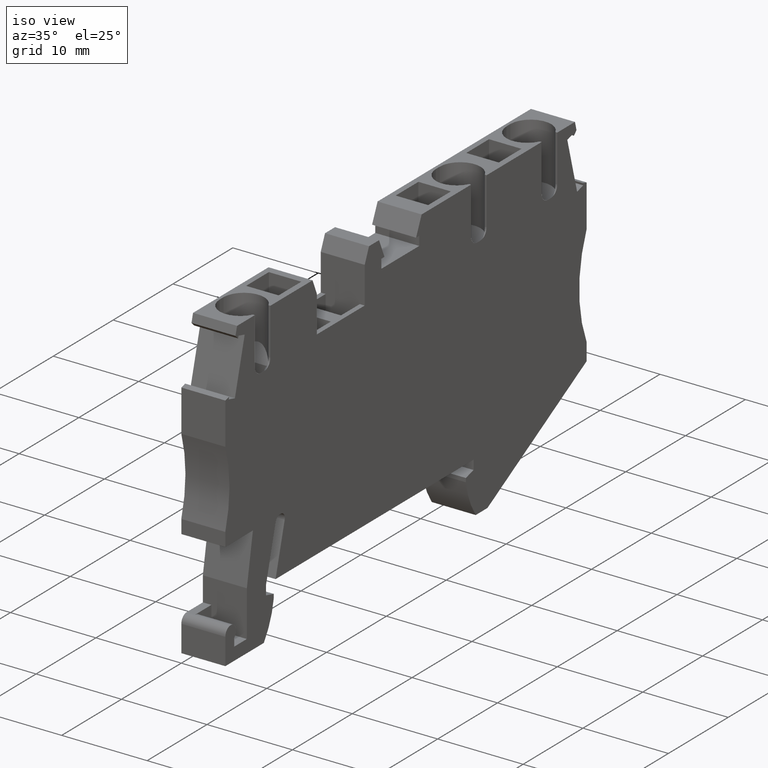
[diagram: clean part render]
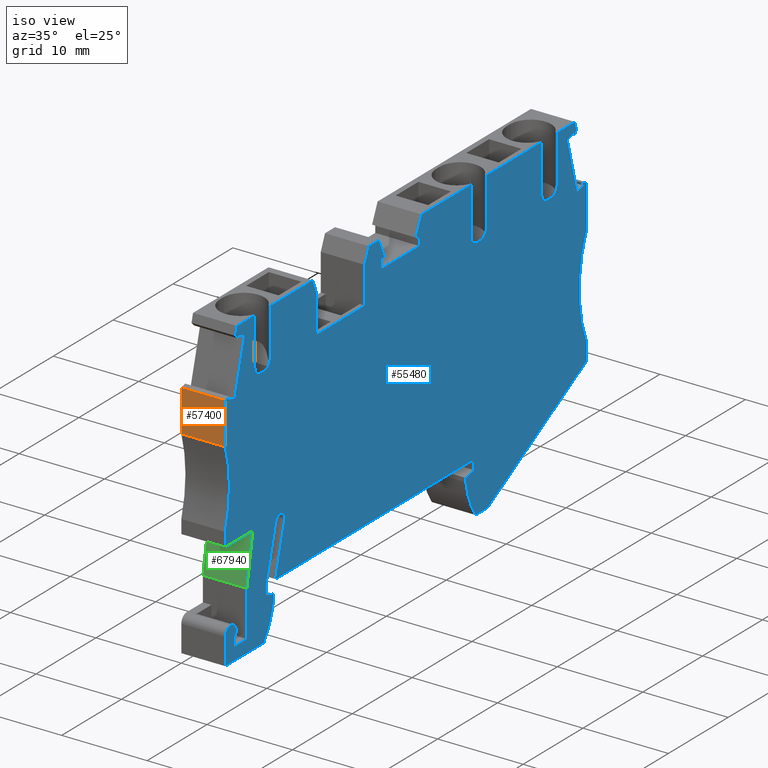
[diagram: same view with three faces highlighted in distinct colors, each labeled with its STEP entity id]
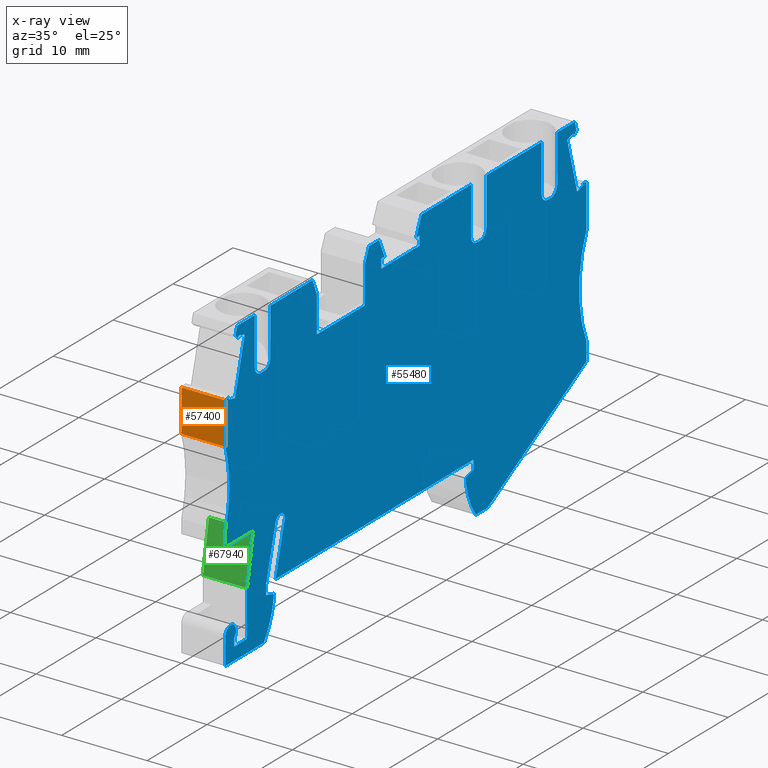
[diagram: x-ray of the same camera — body ghosted, the three highlighted faces saturated]
A machine part, iso view with three faces highlighted in distinct colors.
The next image is the same camera in x-ray (body ghosted, the three faces saturated) — at least one of them is partly hidden behind the body in this view.
Their STEP definitions:

[orange] entity #57400 — the highlighted planar face has unit normal (-0, -1, 0).
#3920=CARTESIAN_POINT('',(-22.3678327783245,-16.3000793279225,48.52));
#3930=VERTEX_POINT('',#3920);
#4080=CARTESIAN_POINT('',(-22.3678327783245,-16.3000793279225,53.67));
#4090=VERTEX_POINT('',#4080);
#4120=CARTESIAN_POINT('',(-22.3678327783246,-16.3000793279226,53.67));
#4130=DIRECTION('',(0.,0.,-1.));
#4140=VECTOR('',#4130,1.);
#4150=LINE('',#4120,#4140);
#4160=EDGE_CURVE('',#4090,#3930,#4150,.T.);
#36080=CARTESIAN_POINT('',(-22.3678327783245,-39.6931569607141,48.52));
#36090=DIRECTION('',(-2.05391259555654E-15,1.,0.));
#36100=VECTOR('',#36090,1.);
#36110=LINE('',#36080,#36100);
#36120=CARTESIAN_POINT('',(-22.3678327783245,-21.2000000000028,48.52));
#36130=VERTEX_POINT('',#36120);
#36140=EDGE_CURVE('',#36130,#3930,#36110,.T.);
#52180=CARTESIAN_POINT('',(-22.3678327783245,-21.2000000000028,53.67));
#52190=VERTEX_POINT('',#52180);
#52220=CARTESIAN_POINT('',(-22.3678327783245,-39.6931569607141,53.67));
#52230=DIRECTION('',(-2.05391259555654E-15,1.,0.));
#52240=VECTOR('',#52230,1.);
#52250=LINE('',#52220,#52240);
#52260=EDGE_CURVE('',#52190,#4090,#52250,.T.);
#57240=CARTESIAN_POINT('',(-22.3678327783245,-19.2393498779175,53.67));
#57250=DIRECTION('',(-1.,-2.05391259555654E-15,-0.));
#57260=DIRECTION('',(-2.05391259555654E-15,1.,0.));
#57270=AXIS2_PLACEMENT_3D('',#57240,#57250,#57260);
#57280=PLANE('',#57270);
#57290=ORIENTED_EDGE('',*,*,#4160,.T.);
#57300=ORIENTED_EDGE('',*,*,#52260,.T.);
#57310=CARTESIAN_POINT('',(-22.3678327783245,-21.2000000000028,53.67));
#57320=DIRECTION('',(0.,0.,1.));
#57330=VECTOR('',#57320,1.);
#57340=LINE('',#57310,#57330);
#57350=EDGE_CURVE('',#36130,#52190,#57340,.T.);
#57360=ORIENTED_EDGE('',*,*,#57350,.T.);
#57370=ORIENTED_EDGE('',*,*,#36140,.F.);
#57380=EDGE_LOOP('',(#57370,#57360,#57300,#57290));
#57390=FACE_OUTER_BOUND('',#57380,.T.);
#57400=ADVANCED_FACE('',(#57390),#57280,.T.);

[blue] entity #55480 — the highlighted planar face has unit normal (1, -0, -0).
#580=CARTESIAN_POINT('',(-16.4428327783246,-15.6499999999974,
53.6700000000011));
#590=VERTEX_POINT('',#580);
#4000=CARTESIAN_POINT('',(-21.7289289220527,-16.1288855555983,53.67));
#4010=VERTEX_POINT('',#4000);
#4040=CARTESIAN_POINT('',(-31.8869546500592,-18.8507203460335,53.67));
#4050=DIRECTION('',(-0.965925826290942,-0.25881904509553,0.));
#4060=VECTOR('',#4050,1.);
#4070=LINE('',#4040,#4060);
#4080=CARTESIAN_POINT('',(-22.3678327783245,-16.3000793279225,53.67));
#4090=VERTEX_POINT('',#4080);
#4100=EDGE_CURVE('',#4010,#4090,#4070,.T.);
#4390=CARTESIAN_POINT('',(32.1071675303897,-15.6499999999945,53.67));
#4400=VERTEX_POINT('',#4390);
#4430=CARTESIAN_POINT('',(-31.4939556077462,-15.6499999995742,53.67));
#4440=DIRECTION('',(1.,-6.60929644347164E-12,0.));
#4450=VECTOR('',#4440,1.);
#4460=LINE('',#4430,#4450);
#4470=CARTESIAN_POINT('',(31.5071672216764,-15.6499999999905,53.67));
#4480=VERTEX_POINT('',#4470);
#4490=EDGE_CURVE('',#4480,#4400,#4460,.T.);
#5860=CARTESIAN_POINT('',(-14.2678327783245,-40.3000000000023,53.67));
#5870=VERTEX_POINT('',#5860);
#6030=CARTESIAN_POINT('',(-15.9267764314572,-44.4000000000014,53.67));
#6040=VERTEX_POINT('',#6030);
#6070=CARTESIAN_POINT('',(-23.6618054577009,-38.8846282117039,53.67));
#6080=DIRECTION('',(0.,0.,1.));
#6090=DIRECTION('',(1.,0.,0.));
#6100=AXIS2_PLACEMENT_3D('',#6070,#6080,#6090);
#6110=CIRCLE('',#6100,9.499999999999);
#6120=EDGE_CURVE('',#6040,#5870,#6110,.T.);
#6760=CARTESIAN_POINT('',(0.932167221675449,-42.5540372297518,53.67));
#6770=DIRECTION('',(-5.53723733531797E-15,1.,0.));
#6780=VECTOR('',#6770,1.);
#6790=LINE('',#6760,#6780);
#6800=CARTESIAN_POINT('',(0.9321672216753,-15.1500000000016,53.67));
#6810=VERTEX_POINT('',#6800);
#6820=CARTESIAN_POINT('',(0.932167221675272,-10.8500000000035,53.67));
#6830=VERTEX_POINT('',#6820);
#6840=EDGE_CURVE('',#6810,#6830,#6790,.T.);
#7570=CARTESIAN_POINT('',(-13.9678327783249,-38.4000000000014,53.67));
#7580=VERTEX_POINT('',#7570);
#7730=CARTESIAN_POINT('',(-12.4395449513869,-32.6963521812909,53.67));
#7740=VERTEX_POINT('',#7730);
#7770=CARTESIAN_POINT('',(-14.5708539323056,-40.6505055846918,53.67));
#7780=DIRECTION('',(0.258819045102995,0.965925826288942,0.));
#7790=VECTOR('',#7780,1.);
#7800=LINE('',#7770,#7790);
#7810=EDGE_CURVE('',#7580,#7740,#7800,.T.);
#8020=CARTESIAN_POINT('',(10.0446672216771,-12.3250000000016,53.67));
#8030=VERTEX_POINT('',#8020);
#8080=CARTESIAN_POINT('',(-31.0856969427963,-12.3249999999992,53.67));
#8090=DIRECTION('',(-1.,5.79813974610488E-14,0.));
#8100=VECTOR('',#8090,1.);
#8110=LINE('',#8080,#8100);
#8120=CARTESIAN_POINT('',(3.71966722167659,-12.3250000000012,53.67));
#8130=VERTEX_POINT('',#8120);
#8140=EDGE_CURVE('',#8030,#8130,#8110,.T.);
#10130=CARTESIAN_POINT('',(31.507167530391,-14.6499999999794,53.67));
#10140=DIRECTION('',(3.13115360099042E-12,-1.00896627027643E-12,-1.));
#10150=DIRECTION('',(-1.,-3.96765953425415E-14,-3.13115360099038E-12));
#10160=AXIS2_PLACEMENT_3D('',#10130,#10140,#10150);
#10170=CIRCLE('',#10160,1.);
#10180=CARTESIAN_POINT('',(31.507159775291,-15.6499999999493,
53.670000000001));
#10190=VERTEX_POINT('',#10180);
#10200=CARTESIAN_POINT('',(30.5071672216764,-14.6499999999796,53.67));
#10210=VERTEX_POINT('',#10200);
#10220=EDGE_CURVE('',#10190,#10210,#10170,.T.);
#11380=CARTESIAN_POINT('',(18.7071672216764,-14.6499999999833,53.67));
#11390=VERTEX_POINT('',#11380);
#11420=CARTESIAN_POINT('',(18.7071672216652,-44.7365327997996,53.67));
#11430=DIRECTION('',(1.56846757803919E-13,-1.,0.));
#11440=VECTOR('',#11430,1.);
#11450=LINE('',#11420,#11440);
#11460=CARTESIAN_POINT('',(18.7071672216757,-9.1500000000032,53.67));
#11470=VERTEX_POINT('',#11460);
#11480=EDGE_CURVE('',#11470,#11390,#11450,.T.);
#11830=CARTESIAN_POINT('',(17.8321672216754,-39.8483339501617,53.67));
#11840=VERTEX_POINT('',#11830);
#12010=CARTESIAN_POINT('',(19.1321672216756,-39.5000000000013,53.67));
#12020=VERTEX_POINT('',#12010);
#12050=CARTESIAN_POINT('',(-36.2442529339963,-54.3380670604362,53.67));
#12060=DIRECTION('',(0.965925826289086,0.258819045102457,0.));
#12070=VECTOR('',#12060,1.);
#12080=LINE('',#12050,#12070);
#12090=EDGE_CURVE('',#11840,#12020,#12080,.T.);
#12300=CARTESIAN_POINT('',(-20.2328552587309,-10.545462632217,53.67));
#12310=VERTEX_POINT('',#12300);
#12360=CARTESIAN_POINT('',(-27.8621918696398,-39.0185344922441,53.67));
#12370=DIRECTION('',(0.258819045101928,0.965925826289227,0.));
#12380=VECTOR('',#12370,1.);
#12390=LINE('',#12360,#12380);
#12400=CARTESIAN_POINT('',(-20.1623768602548,-10.2824336682674,53.67));
#12410=VERTEX_POINT('',#12400);
#12420=EDGE_CURVE('',#12310,#12410,#12390,.T.);
#12680=CARTESIAN_POINT('',(31.5071675303976,-15.6499999999819,
51.2699999999961));
#12690=DIRECTION('',(-3.76046036448341E-14,1.,-1.0101963979135E-12));
#12700=DIRECTION('',(1.,3.96627175547337E-14,3.13117544713387E-12));
#12710=AXIS2_PLACEMENT_3D('',#12680,#12690,#12700);
#12720=CONICAL_SURFACE('',#12710,2.4,0.523598775598298);
#12730=CARTESIAN_POINT('',(3.5299232216756,-14.8667820000014,53.67));
#12740=DIRECTION('',(0.,-0.,1.));
#12750=DIRECTION('',(0.,1.,0.));
#12760=AXIS2_PLACEMENT_3D('',#12730,#12740,#12750);
#12770=PLANE('',#12760);
#12780=CARTESIAN_POINT('',(31.507159775291,-15.6499999999511,53.67));
#12790=CARTESIAN_POINT('',(31.5071603958231,-15.6499999999545,53.67));
#12800=CARTESIAN_POINT('',(31.5071610163551,-15.6499999999576,53.67));
#12810=CARTESIAN_POINT('',(31.5071616368872,-15.6499999999602,53.67));
#12820=CARTESIAN_POINT('',(31.5071622574193,-15.6499999999629,53.67));
#12830=CARTESIAN_POINT('',(31.5071628779513,-15.6499999999651,53.67));
#12840=CARTESIAN_POINT('',(31.5071634984835,-15.6499999999669,53.67));
#12850=CARTESIAN_POINT('',(31.5071641190156,-15.6499999999687,53.67));
#12860=CARTESIAN_POINT('',(31.5071647395477,-15.6499999999701,53.67));
#12870=CARTESIAN_POINT('',(31.5071653600799,-15.6499999999711,53.67));
#12880=CARTESIAN_POINT('',(31.507165980612,-15.649999999972,53.67));
#12890=CARTESIAN_POINT('',(31.5071666011442,-15.6499999999726,53.67));
#12900=CARTESIAN_POINT('',(31.5071672216764,-15.6499999999727,53.67));
#12910=B_SPLINE_CURVE_WITH_KNOTS('',3,(#12780,#12790,#12800,#12810,
#12820,#12830,#12840,#12850,#12860,#12870,#12880,#12890,#12900),
.UNSPECIFIED.,.F.,.F.,(4,3,3,3,4),(0.,1.86149800215878E-6,
3.72322501201359E-6,5.58483752523031E-6,7.44645003417067E-6),
.UNSPECIFIED.);
#12920=SURFACE_CURVE('',#12910,(#12770,#12720),.CURVE_3D.);
#12930=EDGE_CURVE('',#10190,#4480,#12920,.T.);
#15360=CARTESIAN_POINT('',(36.0719729923297,-9.15000000000321,53.67));
#15370=VERTEX_POINT('',#15360);
#15400=CARTESIAN_POINT('',(-30.6958559619301,-9.15000000000321,53.67));
#15410=DIRECTION('',(-1.,0.,0.));
#15420=VECTOR('',#15410,1.);
#15430=LINE('',#15400,#15420);
#15440=CARTESIAN_POINT('',(33.1071672216757,-9.15000000000321,53.67));
#15450=VERTEX_POINT('',#15440);
#15460=EDGE_CURVE('',#15370,#15450,#15430,.T.);
#15860=CARTESIAN_POINT('',(30.5071672216757,-9.15000000000328,53.67));
#15870=VERTEX_POINT('',#15860);
#15900=CARTESIAN_POINT('',(-30.7553307158937,-9.15000000000321,53.67));
#15910=DIRECTION('',(-1.,0.,0.));
#15920=VECTOR('',#15910,1.);
#15930=LINE('',#15900,#15920);
#15940=CARTESIAN_POINT('',(21.3071672216757,-9.15000000000321,53.67));
#15950=VERTEX_POINT('',#15940);
#15960=EDGE_CURVE('',#15870,#15950,#15930,.T.);
#16310=CARTESIAN_POINT('',(-30.6958559619301,-9.15000000000321,53.67));
#16320=DIRECTION('',(1.,0.,0.));
#16330=VECTOR('',#16320,1.);
#16340=LINE('',#16310,#16330);
#16350=CARTESIAN_POINT('',(10.4418215966526,-9.15000000000316,53.67));
#16360=VERTEX_POINT('',#16350);
#16370=EDGE_CURVE('',#16360,#11470,#16340,.T.);
#16740=CARTESIAN_POINT('',(-22.3678327783245,-30.2000000000027,53.67));
#16750=VERTEX_POINT('',#16740);
#16780=CARTESIAN_POINT('',(-22.3678327783245,-39.6931569607141,53.67));
#16790=DIRECTION('',(-2.05391259555654E-15,1.,0.));
#16800=VECTOR('',#16790,1.);
#16810=LINE('',#16780,#16800);
#16820=CARTESIAN_POINT('',(-22.3678327783245,-31.8000000000004,53.67));
#16830=VERTEX_POINT('',#16820);
#16840=EDGE_CURVE('',#16830,#16750,#16810,.T.);
#18300=CARTESIAN_POINT('',(-15.8428324695884,-15.6499999999869,53.67));
#18310=VERTEX_POINT('',#18300);
#18380=CARTESIAN_POINT('',(-14.8428327783256,-14.6499999999965,53.67));
#18390=VERTEX_POINT('',#18380);
#18420=CARTESIAN_POINT('',(-15.8428324695895,-14.6499999999971,53.67));
#18430=DIRECTION('',(3.13117048096117E-12,1.00896627027886E-12,1.));
#18440=DIRECTION('',(1.,7.37479521895068E-13,-3.13117048096192E-12));
#18450=AXIS2_PLACEMENT_3D('',#18420,#18430,#18440);
#18460=CIRCLE('',#18450,1.);
#18470=EDGE_CURVE('',#18310,#18390,#18460,.T.);
#23270=CARTESIAN_POINT('',(21.4498082777127,-44.4000000000015,53.67));
#23280=VERTEX_POINT('',#23270);
#23430=CARTESIAN_POINT('',(19.4911108748078,-44.4000000000014,53.67));
#23440=VERTEX_POINT('',#23430);
#23470=CARTESIAN_POINT('',(-35.0240117337568,-44.3999999999983,53.67));
#23480=DIRECTION('',(-1.,5.79120085220097E-14,0.));
#23490=VECTOR('',#23480,1.);
#23500=LINE('',#23470,#23490);
#23510=EDGE_CURVE('',#23280,#23440,#23500,.T.);
#24190=CARTESIAN_POINT('',(19.1321672216756,-38.4000000000014,53.67));
#24200=VERTEX_POINT('',#24190);
#24230=CARTESIAN_POINT('',(19.1321672216756,-44.7887162381846,53.67));
#24240=DIRECTION('',(0.,1.,0.));
#24250=VECTOR('',#24240,1.);
#24260=LINE('',#24230,#24250);
#24270=EDGE_CURVE('',#12020,#24200,#24260,.T.);
#24500=CARTESIAN_POINT('',(21.3071672216764,-14.6499999999829,53.67));
#24510=VERTEX_POINT('',#24500);
#24610=CARTESIAN_POINT('',(21.3071672216649,-45.0557726581471,53.67));
#24620=DIRECTION('',(-1.56846757803919E-13,1.,0.));
#24630=VECTOR('',#24620,1.);
#24640=LINE('',#24610,#24630);
#24650=EDGE_CURVE('',#24510,#15950,#24640,.T.);
#24880=CARTESIAN_POINT('',(33.1071675303907,-14.6499999999791,
53.6700000000038));
#24890=VERTEX_POINT('',#24880);
#24920=CARTESIAN_POINT('',(32.1071675303907,-14.6499999999793,53.67));
#24930=DIRECTION('',(3.83875002304335E-12,-1.13159598700693E-12,-1.));
#24940=DIRECTION('',(-1.,-3.96765953425415E-14,-3.8387500230433E-12));
#24950=AXIS2_PLACEMENT_3D('',#24920,#24930,#24940);
#24960=CIRCLE('',#24950,1.);
#24970=EDGE_CURVE('',#24890,#4400,#24960,.T.);
#26110=CARTESIAN_POINT('',(3.71966722167659,-42.8962991932687,53.67));
#26120=DIRECTION('',(0.,1.,0.));
#26130=VECTOR('',#26120,1.);
#26140=LINE('',#26110,#26130);
#26150=CARTESIAN_POINT('',(3.71966722167659,-11.2550000000016,53.67));
#26160=VERTEX_POINT('',#26150);
#26170=EDGE_CURVE('',#8130,#26160,#26140,.T.);
#26700=CARTESIAN_POINT('',(30.5071675303959,-46.1853906563613,53.67));
#26710=DIRECTION('',(1.56846757803919E-13,-1.,0.));
#26720=VECTOR('',#26710,1.);
#26730=LINE('',#26700,#26720);
#26740=EDGE_CURVE('',#15870,#10210,#26730,.T.);
#28940=CARTESIAN_POINT('',(19.7071672216602,-15.6499999999792,53.67));
#28950=VERTEX_POINT('',#28940);
#31670=CARTESIAN_POINT('',(3.56530628123637,-42.8773460529762,53.67));
#31680=DIRECTION('',(0.707106781187503,0.707106781185593,0.));
#31690=VECTOR('',#31680,1.);
#31700=LINE('',#31670,#31690);
#31710=CARTESIAN_POINT('',(35.8971897020823,-10.5454626322177,53.67));
#31720=VERTEX_POINT('',#31710);
#31730=CARTESIAN_POINT('',(36.3299328899744,-10.1127194443267,53.67));
#31740=VERTEX_POINT('',#31730);
#31750=EDGE_CURVE('',#31720,#31740,#31700,.T.);
#32280=CARTESIAN_POINT('',(-18.7678327783247,-37.5384100015805,53.67));
#32290=VERTEX_POINT('',#32280);
#32320=CARTESIAN_POINT('',(-18.7678327783247,-40.1351813799645,53.67));
#32330=DIRECTION('',(0.,1.,0.));
#32340=VECTOR('',#32330,1.);
#32350=LINE('',#32320,#32340);
#32360=CARTESIAN_POINT('',(-18.7678327783247,-42.9000000000008,53.67));
#32370=VERTEX_POINT('',#32360);
#32380=EDGE_CURVE('',#32370,#32290,#32350,.T.);
#36440=CARTESIAN_POINT('',(38.0321672216757,-21.2000000000024,53.67));
#36450=VERTEX_POINT('',#36440);
#36480=CARTESIAN_POINT('',(38.0321672216757,-47.1093444392495,53.67));
#36490=DIRECTION('',(-5.55111512312578E-17,-1.,0.));
#36500=VECTOR('',#36490,1.);
#36510=LINE('',#36480,#36500);
#36520=CARTESIAN_POINT('',(38.0321672216757,-16.3000793279237,53.67));
#36530=VERTEX_POINT('',#36520);
#36540=EDGE_CURVE('',#36530,#36450,#36510,.T.);
#36810=CARTESIAN_POINT('',(-15.5678327783241,-39.5000000000014,53.67));
#36820=VERTEX_POINT('',#36810);
#36900=CARTESIAN_POINT('',(-14.2678327783246,-39.8483339501618,53.67));
#36910=VERTEX_POINT('',#36900);
#36940=CARTESIAN_POINT('',(-33.8218110628281,-34.6088612600111,53.67));
#36950=DIRECTION('',(0.96592582628904,-0.258819045102626,0.));
#36960=VECTOR('',#36950,1.);
#36970=LINE('',#36940,#36960);
#36980=EDGE_CURVE('',#36820,#36910,#36970,.T.);
#37170=CARTESIAN_POINT('',(-29.3566806060777,1.75670802586475,53.67));
#37180=DIRECTION('',(-0.965925826290939,0.25881904509554,0.));
#37190=VECTOR('',#37180,1.);
#37200=LINE('',#37170,#37190);
#37210=CARTESIAN_POINT('',(37.3932633654039,-16.1288855555997,53.67));
#37220=VERTEX_POINT('',#37210);
#37230=EDGE_CURVE('',#36530,#37220,#37200,.T.);
#37480=CARTESIAN_POINT('',(-3.97307229660357,-41.9517495493763,53.67));
#37490=DIRECTION('',(0.402320578212711,0.915498854366618,0.));
#37500=VECTOR('',#37490,1.);
#37510=LINE('',#37480,#37500);
#37520=CARTESIAN_POINT('',(9.51676875458972,-11.2550000000016,53.67));
#37530=VERTEX_POINT('',#37520);
#37540=EDGE_CURVE('',#37530,#16360,#37510,.T.);
#37820=CARTESIAN_POINT('',(3.32251284670154,-9.15000000000322,53.67));
#37830=VERTEX_POINT('',#37820);
#37860=CARTESIAN_POINT('',(-30.6958559619306,-9.15000000000734,53.67));
#37870=DIRECTION('',(-1.,-1.21042065259758E-13,0.));
#37880=VECTOR('',#37870,1.);
#37890=LINE('',#37860,#37880);
#37900=CARTESIAN_POINT('',(1.65066694095677,-9.15000000000342,53.67));
#37910=VERTEX_POINT('',#37900);
#37920=EDGE_CURVE('',#37830,#37910,#37890,.T.);
#39430=CARTESIAN_POINT('',(-16.4428324695891,-14.6499999999975,53.67));
#39440=DIRECTION('',(3.838766903014E-12,1.13159598700991E-12,1.));
#39450=DIRECTION('',(1.,7.37479521895068E-13,-3.83876690301483E-12));
#39460=AXIS2_PLACEMENT_3D('',#39430,#39440,#39450);
#39470=CIRCLE('',#39460,1.);
#39480=CARTESIAN_POINT('',(-17.4428324695891,-14.6499999999981,
53.6700000000038));
#39490=VERTEX_POINT('',#39480);
#39500=EDGE_CURVE('',#39490,#590,#39470,.T.);
#39770=CARTESIAN_POINT('',(4.24756568876223,-11.2550000000016,53.67));
#39780=VERTEX_POINT('',#39770);
#39830=CARTESIAN_POINT('',(-30.9543174626305,-11.2550000000016,53.67));
#39840=DIRECTION('',(1.,0.,0.));
#39850=VECTOR('',#39840,1.);
#39860=LINE('',#39830,#39850);
#39870=EDGE_CURVE('',#26160,#39780,#39860,.T.);
#40090=CARTESIAN_POINT('',(36.4302011297503,-16.6688508978053,53.67));
#40100=VERTEX_POINT('',#40090);
#40130=CARTESIAN_POINT('',(44.8096873663856,-47.9415192742283,53.67));
#40140=DIRECTION('',(-0.258819045102705,0.965925826289019,0.));
#40150=VECTOR('',#40140,1.);
#40160=LINE('',#40130,#40150);
#40170=CARTESIAN_POINT('',(34.7931706694764,-10.5593700465281,53.67));
#40180=VERTEX_POINT('',#40170);
#40190=EDGE_CURVE('',#40100,#40180,#40160,.T.);
#43710=CARTESIAN_POINT('',(20.3071672216602,-14.649999999983,53.67));
#43720=DIRECTION('',(3.83875002304335E-12,-1.13159598700693E-12,-1.));
#43730=DIRECTION('',(-1.,-3.96765953425415E-14,-3.8387500230433E-12));
#43740=AXIS2_PLACEMENT_3D('',#43710,#43720,#43730);
#43750=CIRCLE('',#43740,1.);
#43760=CARTESIAN_POINT('',(20.3071672216593,-15.6499999999831,53.67));
#43770=VERTEX_POINT('',#43760);
#43780=EDGE_CURVE('',#24510,#43770,#43750,.T.);
#45150=CARTESIAN_POINT('',(-33.4769262663803,-31.7999999999985,53.67));
#45160=DIRECTION('',(-1.,1.71668235182665E-13,0.));
#45170=VECTOR('',#45160,1.);
#45180=LINE('',#45150,#45170);
#45190=CARTESIAN_POINT('',(-17.755996268679,-31.8000000000011,53.67));
#45200=VERTEX_POINT('',#45190);
#45210=EDGE_CURVE('',#45200,#16830,#45180,.T.);
#46430=CARTESIAN_POINT('',(-7.06783277832433,-41.5717607425285,53.67));
#46440=DIRECTION('',(-2.76167977375508E-15,1.,0.));
#46450=VECTOR('',#46440,1.);
#46460=LINE('',#46430,#46450);
#46470=CARTESIAN_POINT('',(-7.06783277832441,-15.1500000000016,53.67));
#46480=VERTEX_POINT('',#46470);
#46490=CARTESIAN_POINT('',(-7.06783277832442,-10.8500000000034,53.67));
#46500=VERTEX_POINT('',#46490);
#46510=EDGE_CURVE('',#46480,#46500,#46460,.T.);
#50580=CARTESIAN_POINT('',(35.8267113036066,-10.2824336682683,53.67));
#50590=VERTEX_POINT('',#50580);
#50620=CARTESIAN_POINT('',(45.955117560187,-48.0821604176192,53.67));
#50630=DIRECTION('',(0.258819045101928,-0.965925826289227,0.));
#50640=VECTOR('',#50630,1.);
#50650=LINE('',#50620,#50640);
#50660=EDGE_CURVE('',#50590,#31720,#50650,.T.);
#51360=CARTESIAN_POINT('',(38.0321672216756,-33.2000000000027,53.67));
#51370=VERTEX_POINT('',#51360);
#51450=CARTESIAN_POINT('',(38.0321672216756,-35.2,53.67));
#51460=VERTEX_POINT('',#51450);
#51490=CARTESIAN_POINT('',(38.0321672216756,-47.1093444392495,53.67));
#51500=DIRECTION('',(-8.32667268468867E-17,-1.,0.));
#51510=VECTOR('',#51500,1.);
#51520=LINE('',#51490,#51510);
#51530=EDGE_CURVE('',#51370,#51460,#51520,.T.);
#52120=ORIENTED_EDGE('',*,*,#16840,.F.);
#52130=CARTESIAN_POINT('',(-36.6769207995787,-25.7000000000028,53.67));
#52140=DIRECTION('',(0.,0.,1.));
#52150=DIRECTION('',(1.,0.,0.));
#52160=AXIS2_PLACEMENT_3D('',#52130,#52140,#52150);
#52170=CIRCLE('',#52160,15.);
#52180=CARTESIAN_POINT('',(-22.3678327783245,-21.2000000000028,53.67));
#52190=VERTEX_POINT('',#52180);
#52200=EDGE_CURVE('',#16750,#52190,#52170,.T.);
#52210=ORIENTED_EDGE('',*,*,#52200,.F.);
#52220=CARTESIAN_POINT('',(-22.3678327783245,-39.6931569607141,53.67));
#52230=DIRECTION('',(-2.05391259555654E-15,1.,0.));
#52240=VECTOR('',#52230,1.);
#52250=LINE('',#52220,#52240);
#52260=EDGE_CURVE('',#52190,#4090,#52250,.T.);
#52270=ORIENTED_EDGE('',*,*,#52260,.F.);
#52280=ORIENTED_EDGE('',*,*,#4100,.T.);
#52290=CARTESIAN_POINT('',(-27.8621918696753,-39.0185344922397,53.67));
#52300=DIRECTION('',(0.258819045103216,0.965925826288882,0.));
#52310=VECTOR('',#52300,1.);
#52320=LINE('',#52290,#52310);
#52330=CARTESIAN_POINT('',(-21.7994073205286,-16.3919145195456,53.67));
#52340=VERTEX_POINT('',#52330);
#52350=EDGE_CURVE('',#52340,#4010,#52320,.T.);
#52360=ORIENTED_EDGE('',*,*,#52350,.T.);
#52370=CARTESIAN_POINT('',(-31.2733580505142,-13.8533770723114,53.67));
#52380=DIRECTION('',(-0.96592582628901,0.25881904510274,0.));
#52390=VECTOR('',#52380,1.);
#52400=LINE('',#52370,#52390);
#52410=CARTESIAN_POINT('',(-20.7658666864001,-16.6688508978052,53.67));
#52420=VERTEX_POINT('',#52410);
#52430=EDGE_CURVE('',#52420,#52340,#52400,.T.);
#52440=ORIENTED_EDGE('',*,*,#52430,.T.);
#52450=CARTESIAN_POINT('',(-26.7897303657746,-39.1502162070814,53.67));
#52460=DIRECTION('',(0.258819045102715,0.965925826289016,0.));
#52470=VECTOR('',#52460,1.);
#52480=LINE('',#52450,#52470);
#52490=CARTESIAN_POINT('',(-19.1288362261254,-10.559370046527,53.67));
#52500=VERTEX_POINT('',#52490);
#52510=EDGE_CURVE('',#52420,#52500,#52480,.T.);
#52520=ORIENTED_EDGE('',*,*,#52510,.F.);
#52530=CARTESIAN_POINT('',(-30.4949591286781,-7.51382659371658,53.67));
#52540=DIRECTION('',(0.9659258262891,-0.258819045102404,0.));
#52550=VECTOR('',#52540,1.);
#52560=LINE('',#52530,#52550);
#52570=EDGE_CURVE('',#12410,#52500,#52560,.T.);
#52580=ORIENTED_EDGE('',*,*,#52570,.T.);
#52590=ORIENTED_EDGE('',*,*,#12420,.T.);
#52600=CARTESIAN_POINT('',(-29.7042555077718,-1.07406238320153,53.67));
#52610=DIRECTION('',(-0.707106781187495,0.7071067811856,0.));
#52620=VECTOR('',#52610,1.);
#52630=LINE('',#52600,#52620);
#52640=CARTESIAN_POINT('',(-20.6655984466231,-10.112719444326,53.67));
#52650=VERTEX_POINT('',#52640);
#52660=EDGE_CURVE('',#12310,#52650,#52630,.T.);
#52670=ORIENTED_EDGE('',*,*,#52660,.F.);
#52680=CARTESIAN_POINT('',(-28.3934111192612,-38.9533089699361,53.67));
#52690=DIRECTION('',(-0.258819045102936,-0.965925826288957,0.));
#52700=VECTOR('',#52690,1.);
#52710=LINE('',#52680,#52700);
#52720=CARTESIAN_POINT('',(-20.4076385489783,-9.15000000000173,53.67));
#52730=VERTEX_POINT('',#52720);
#52740=EDGE_CURVE('',#52730,#52650,#52710,.T.);
#52750=ORIENTED_EDGE('',*,*,#52740,.T.);
#52760=CARTESIAN_POINT('',(-30.6958559619297,-9.15000000000042,53.67));
#52770=DIRECTION('',(-1.,1.26121335597418E-13,0.));
#52780=VECTOR('',#52770,1.);
#52790=LINE('',#52760,#52780);
#52800=CARTESIAN_POINT('',(-17.442832778325,-9.15000000000209,53.67));
#52810=VERTEX_POINT('',#52800);
#52820=EDGE_CURVE('',#52810,#52730,#52790,.T.);
#52830=ORIENTED_EDGE('',*,*,#52820,.T.);
#52840=CARTESIAN_POINT('',(-17.4428324695732,-40.2978709610708,53.67));
#52850=DIRECTION('',(-6.20170581555612E-13,1.,0.));
#52860=VECTOR('',#52850,1.);
#52870=LINE('',#52840,#52860);
#52880=EDGE_CURVE('',#39490,#52810,#52870,.T.);
#52890=ORIENTED_EDGE('',*,*,#52880,.T.);
#52900=ORIENTED_EDGE('',*,*,#39500,.F.);
#52910=CARTESIAN_POINT('',(-31.4939556078133,-15.6500000001203,53.67));
#52920=DIRECTION('',(-1.,-7.38639704955801E-12,0.));
#52930=VECTOR('',#52920,1.);
#52940=LINE('',#52910,#52930);
#52950=EDGE_CURVE('',#18310,#590,#52940,.T.);
#52960=ORIENTED_EDGE('',*,*,#52950,.T.);
#52970=ORIENTED_EDGE('',*,*,#18470,.F.);
#52980=CARTESIAN_POINT('',(-14.8428324695734,-40.6171108194183,53.67));
#52990=DIRECTION('',(6.20142825979997E-13,-1.,0.));
#53000=VECTOR('',#52990,1.);
#53010=LINE('',#52980,#53000);
#53020=CARTESIAN_POINT('',(-14.8428327783249,-9.15000000000243,53.67));
#53030=VERTEX_POINT('',#53020);
#53040=EDGE_CURVE('',#53030,#18390,#53010,.T.);
#53050=ORIENTED_EDGE('',*,*,#53040,.T.);
#53060=CARTESIAN_POINT('',(-30.6958559619297,-9.15000000000042,53.67));
#53070=DIRECTION('',(-1.,1.26121335597418E-13,0.));
#53080=VECTOR('',#53070,1.);
#53090=LINE('',#53060,#53080);
#53100=CARTESIAN_POINT('',(-7.78633249760594,-9.15000000000321,53.67));
#53110=VERTEX_POINT('',#53100);
#53120=EDGE_CURVE('',#53110,#53030,#53090,.T.);
#53130=ORIENTED_EDGE('',*,*,#53120,.T.);
#53140=CARTESIAN_POINT('',(6.62732765293212,-43.2533150025752,53.67));
#53150=DIRECTION('',(-0.389303997086923,0.921109330021222,0.));
#53160=VECTOR('',#53150,1.);
#53170=LINE('',#53140,#53160);
#53180=EDGE_CURVE('',#46500,#53110,#53170,.T.);
#53190=ORIENTED_EDGE('',*,*,#53180,.T.);
#53200=ORIENTED_EDGE('',*,*,#46510,.T.);
#53210=CARTESIAN_POINT('',(-31.4325633273473,-15.1500000000016,53.67));
#53220=DIRECTION('',(-1.,0.,0.));
#53230=VECTOR('',#53220,1.);
#53240=LINE('',#53210,#53230);
#53250=EDGE_CURVE('',#6810,#46480,#53240,.T.);
#53260=ORIENTED_EDGE('',*,*,#53250,.T.);
#53270=ORIENTED_EDGE('',*,*,#6840,.F.);
#53280=CARTESIAN_POINT('',(-11.8063846804767,-40.9899397279071,53.67));
#53290=DIRECTION('',(-0.389303997086923,-0.921109330021222,0.));
#53300=VECTOR('',#53290,1.);
#53310=LINE('',#53280,#53300);
#53320=EDGE_CURVE('',#37910,#6830,#53310,.T.);
#53330=ORIENTED_EDGE('',*,*,#53320,.T.);
#53340=ORIENTED_EDGE('',*,*,#37920,.T.);
#53350=CARTESIAN_POINT('',(18.9756823710978,-44.7695023145185,53.67));
#53360=DIRECTION('',(0.402320578211921,-0.915498854366965,0.));
#53370=VECTOR('',#53360,1.);
#53380=LINE('',#53350,#53370);
#53390=EDGE_CURVE('',#37830,#39780,#53380,.T.);
#53400=ORIENTED_EDGE('',*,*,#53390,.F.);
#53410=ORIENTED_EDGE('',*,*,#39870,.T.);
#53420=ORIENTED_EDGE('',*,*,#26170,.T.);
#53430=ORIENTED_EDGE('',*,*,#8140,.T.);
#53440=CARTESIAN_POINT('',(10.0446672216767,-43.6729115409796,53.67));
#53450=DIRECTION('',(0.,-1.,0.));
#53460=VECTOR('',#53450,1.);
#53470=LINE('',#53440,#53460);
#53480=CARTESIAN_POINT('',(10.0446672216767,-11.2550000000016,53.67));
#53490=VERTEX_POINT('',#53480);
#53500=EDGE_CURVE('',#53490,#8030,#53470,.T.);
#53510=ORIENTED_EDGE('',*,*,#53500,.T.);
#53520=CARTESIAN_POINT('',(-30.9543174626305,-11.2550000000016,53.67));
#53530=DIRECTION('',(1.,0.,0.));
#53540=VECTOR('',#53530,1.);
#53550=LINE('',#53520,#53540);
#53560=EDGE_CURVE('',#37530,#53490,#53550,.T.);
#53570=ORIENTED_EDGE('',*,*,#53560,.T.);
#53580=ORIENTED_EDGE('',*,*,#37540,.F.);
#53590=ORIENTED_EDGE('',*,*,#16370,.F.);
#53600=ORIENTED_EDGE('',*,*,#11480,.F.);
#53610=CARTESIAN_POINT('',(19.7071672216605,-14.6499999999831,53.67));
#53620=DIRECTION('',(3.13115360099042E-12,-1.00896627027643E-12,-1.));
#53630=DIRECTION('',(-1.,-3.96765953425415E-14,-3.13115360099038E-12));
#53640=AXIS2_PLACEMENT_3D('',#53610,#53620,#53630);
#53650=CIRCLE('',#53640,1.);
#53660=EDGE_CURVE('',#28950,#11390,#53650,.T.);
#53670=ORIENTED_EDGE('',*,*,#53660,.T.);
#53680=CARTESIAN_POINT('',(-31.4939556077544,-15.6499999996408,53.67));
#53690=DIRECTION('',(1.,-6.60929644347164E-12,0.));
#53700=VECTOR('',#53690,1.);
#53710=LINE('',#53680,#53700);
#53720=EDGE_CURVE('',#28950,#43770,#53710,.T.);
#53730=ORIENTED_EDGE('',*,*,#53720,.F.);
#53740=ORIENTED_EDGE('',*,*,#43780,.T.);
#53750=ORIENTED_EDGE('',*,*,#24650,.F.);
#53760=ORIENTED_EDGE('',*,*,#15960,.T.);
#53770=ORIENTED_EDGE('',*,*,#26740,.F.);
#53780=ORIENTED_EDGE('',*,*,#10220,.T.);
#53790=ORIENTED_EDGE('',*,*,#12930,.F.);
#53800=ORIENTED_EDGE('',*,*,#4490,.F.);
#53810=ORIENTED_EDGE('',*,*,#24970,.T.);
#53820=CARTESIAN_POINT('',(33.1071675303956,-46.5046305147088,53.67));
#53830=DIRECTION('',(-1.56846757803919E-13,1.,0.));
#53840=VECTOR('',#53830,1.);
#53850=LINE('',#53820,#53840);
#53860=EDGE_CURVE('',#24890,#15450,#53850,.T.);
#53870=ORIENTED_EDGE('',*,*,#53860,.F.);
#53880=ORIENTED_EDGE('',*,*,#15460,.T.);
#53890=CARTESIAN_POINT('',(46.5224801796062,-48.1518237877173,53.67));
#53900=DIRECTION('',(0.258819045102926,-0.96592582628896,0.));
#53910=VECTOR('',#53900,1.);
#53920=LINE('',#53890,#53910);
#53930=EDGE_CURVE('',#15370,#31740,#53920,.T.);
#53940=ORIENTED_EDGE('',*,*,#53930,.F.);
#53950=ORIENTED_EDGE('',*,*,#31750,.T.);
#53960=ORIENTED_EDGE('',*,*,#50660,.T.);
#53970=CARTESIAN_POINT('',(-33.1026799550058,-28.7520083907735,53.67));
#53980=DIRECTION('',(0.9659258262891,0.258819045102404,0.));
#53990=VECTOR('',#53980,1.);
#54000=LINE('',#53970,#53990);
#54010=EDGE_CURVE('',#40180,#50590,#54000,.T.);
#54020=ORIENTED_EDGE('',*,*,#54010,.T.);
#54030=ORIENTED_EDGE('',*,*,#40190,.T.);
#54040=CARTESIAN_POINT('',(-33.9340399848925,-35.5228924805422,53.67));
#54050=DIRECTION('',(-0.965925826288933,-0.258819045103026,0.));
#54060=VECTOR('',#54050,1.);
#54070=LINE('',#54040,#54060);
#54080=CARTESIAN_POINT('',(37.4637417638794,-16.3919145195451,53.67));
#54090=VERTEX_POINT('',#54080);
#54100=EDGE_CURVE('',#54090,#40100,#54070,.T.);
#54110=ORIENTED_EDGE('',*,*,#54100,.T.);
#54120=CARTESIAN_POINT('',(45.9551175602486,-48.0821604176267,53.67));
#54130=DIRECTION('',(0.258819045103503,-0.965925826288805,0.));
#54140=VECTOR('',#54130,1.);
#54150=LINE('',#54120,#54140);
#54160=EDGE_CURVE('',#37220,#54090,#54150,.T.);
#54170=ORIENTED_EDGE('',*,*,#54160,.T.);
#54180=ORIENTED_EDGE('',*,*,#37230,.T.);
#54190=ORIENTED_EDGE('',*,*,#36540,.F.);
#54200=CARTESIAN_POINT('',(51.7798943065431,-27.2000000000027,53.67));
#54210=DIRECTION('',(0.,0.,1.));
#54220=DIRECTION('',(1.,0.,0.));
#54230=AXIS2_PLACEMENT_3D('',#54200,#54210,#54220);
#54240=CIRCLE('',#54230,15.);
#54250=EDGE_CURVE('',#36450,#51370,#54240,.T.);
#54260=ORIENTED_EDGE('',*,*,#54250,.F.);
#54270=ORIENTED_EDGE('',*,*,#51530,.F.);
#54280=CARTESIAN_POINT('',(-39.1523305504364,-78.0224586081626,53.67));
#54290=DIRECTION('',(-0.874435210897321,-0.485142311021166,0.));
#54300=VECTOR('',#54290,1.);
#54310=LINE('',#54280,#54300);
#54320=EDGE_CURVE('',#51460,#23280,#54310,.T.);
#54330=ORIENTED_EDGE('',*,*,#54320,.F.);
#54340=ORIENTED_EDGE('',*,*,#23510,.F.);
#54350=CARTESIAN_POINT('',(27.2261399010515,-38.8846282117038,53.67));
#54360=DIRECTION('',(0.,0.,-1.));
#54370=DIRECTION('',(-1.,0.,0.));
#54380=AXIS2_PLACEMENT_3D('',#54350,#54360,#54370);
#54390=CIRCLE('',#54380,9.499999999999);
#54400=CARTESIAN_POINT('',(17.8321672216751,-40.300000000002,53.67));
#54410=VERTEX_POINT('',#54400);
#54420=EDGE_CURVE('',#23440,#54410,#54390,.T.);
#54430=ORIENTED_EDGE('',*,*,#54420,.F.);
#54440=CARTESIAN_POINT('',(17.8321672216721,-44.6290963090104,53.67));
#54450=DIRECTION('',(6.9022565440946E-13,1.,0.));
#54460=VECTOR('',#54450,1.);
#54470=LINE('',#54440,#54460);
#54480=EDGE_CURVE('',#54410,#11840,#54470,.T.);
#54490=ORIENTED_EDGE('',*,*,#54480,.F.);
#54500=ORIENTED_EDGE('',*,*,#12090,.F.);
#54510=ORIENTED_EDGE('',*,*,#24270,.F.);
#54520=CARTESIAN_POINT('',(-34.2873043683398,-38.4000000000014,53.67));
#54530=DIRECTION('',(-1.,0.,0.));
#54540=VECTOR('',#54530,1.);
#54550=LINE('',#54520,#54540);
#54560=EDGE_CURVE('',#24200,#7580,#54550,.T.);
#54570=ORIENTED_EDGE('',*,*,#54560,.F.);
#54580=ORIENTED_EDGE('',*,*,#7810,.F.);
#54590=CARTESIAN_POINT('',(-13.1156930297916,-32.5151788497187,53.67));
#54600=DIRECTION('',(0.,0.,1.));
#54610=DIRECTION('',(1.,0.,0.));
#54620=AXIS2_PLACEMENT_3D('',#54590,#54600,#54610);
#54630=CIRCLE('',#54620,0.700000000000186);
#54640=CARTESIAN_POINT('',(-12.9558416625104,-31.8336749683074,53.67));
#54650=VERTEX_POINT('',#54640);
#54660=EDGE_CURVE('',#7740,#54650,#54630,.T.);
#54670=ORIENTED_EDGE('',*,*,#54660,.F.);
#54680=CARTESIAN_POINT('',(-13.1855065178956,-32.6000000000015,53.67));
#54690=DIRECTION('',(0.,0.,1.));
#54700=DIRECTION('',(1.,0.,0.));
#54710=AXIS2_PLACEMENT_3D('',#54680,#54690,#54700);
#54720=CIRCLE('',#54710,0.799999999999994);
#54730=CARTESIAN_POINT('',(-13.9582471789267,-32.3929447639189,53.67));
#54740=VERTEX_POINT('',#54730);
#54750=EDGE_CURVE('',#54650,#54740,#54720,.T.);
#54760=ORIENTED_EDGE('',*,*,#54750,.F.);
#54770=CARTESIAN_POINT('',(-16.1198905892186,-40.4603077989502,53.67));
#54780=DIRECTION('',(0.258819045103168,0.965925826288895,0.));
#54790=VECTOR('',#54780,1.);
#54800=LINE('',#54770,#54790);
#54810=CARTESIAN_POINT('',(-15.5678327783241,-38.3999999999953,53.67));
#54820=VERTEX_POINT('',#54810);
#54830=EDGE_CURVE('',#54820,#54740,#54800,.T.);
#54840=ORIENTED_EDGE('',*,*,#54830,.T.);
#54850=CARTESIAN_POINT('',(-15.5678327783241,-40.5280919748539,53.67));
#54860=DIRECTION('',(0.,-1.,0.));
#54870=VECTOR('',#54860,1.);
#54880=LINE('',#54850,#54870);
#54890=EDGE_CURVE('',#54820,#36820,#54880,.T.);
#54900=ORIENTED_EDGE('',*,*,#54890,.F.);
#54910=ORIENTED_EDGE('',*,*,#36980,.F.);
#54920=CARTESIAN_POINT('',(-14.2678327783248,-40.6877119040276,53.67));
#54930=DIRECTION('',(0.,-1.,0.));
#54940=VECTOR('',#54930,1.);
#54950=LINE('',#54920,#54940);
#54960=EDGE_CURVE('',#36910,#5870,#54950,.T.);
#54970=ORIENTED_EDGE('',*,*,#54960,.F.);
#54980=ORIENTED_EDGE('',*,*,#6120,.T.);
#54990=CARTESIAN_POINT('',(-35.0240117337573,-44.4000000000022,53.67));
#55000=DIRECTION('',(-1.,-3.8219427622721E-14,0.));
#55010=VECTOR('',#55000,1.);
#55020=LINE('',#54990,#55010);
#55030=CARTESIAN_POINT('',(-22.3678327783247,-44.4000000000017,53.67));
#55040=VERTEX_POINT('',#55030);
#55050=EDGE_CURVE('',#6040,#55040,#55020,.T.);
#55060=ORIENTED_EDGE('',*,*,#55050,.F.);
#55070=CARTESIAN_POINT('',(-22.3678327783247,-39.6931569607141,53.67));
#55080=DIRECTION('',(0.,1.,0.));
#55090=VECTOR('',#55080,1.);
#55100=LINE('',#55070,#55090);
#55110=CARTESIAN_POINT('',(-22.3678327783247,-41.3000000000017,53.67));
#55120=VERTEX_POINT('',#55110);
#55130=EDGE_CURVE('',#55040,#55120,#55100,.T.);
#55140=ORIENTED_EDGE('',*,*,#55130,.F.);
#55150=CARTESIAN_POINT('',(-21.4678327783241,-41.3000000000016,53.67));
#55160=DIRECTION('',(0.,0.,1.));
#55170=DIRECTION('',(1.,0.,0.));
#55180=AXIS2_PLACEMENT_3D('',#55150,#55160,#55170);
#55190=CIRCLE('',#55180,0.899999999999826);
#55200=CARTESIAN_POINT('',(-20.867832778325,-41.9708203932521,53.67));
#55210=VERTEX_POINT('',#55200);
#55220=EDGE_CURVE('',#55210,#55120,#55190,.T.);
#55230=ORIENTED_EDGE('',*,*,#55220,.T.);
#55240=CARTESIAN_POINT('',(-20.8678327783262,-39.8773338020682,53.67));
#55250=DIRECTION('',(-6.08318950767739E-13,1.,0.));
#55260=VECTOR('',#55250,1.);
#55270=LINE('',#55240,#55260);
#55280=CARTESIAN_POINT('',(-20.8678327783244,-42.9000000000021,53.67));
#55290=VERTEX_POINT('',#55280);
#55300=EDGE_CURVE('',#55290,#55210,#55270,.T.);
#55310=ORIENTED_EDGE('',*,*,#55300,.T.);
#55320=CARTESIAN_POINT('',(-34.839834892404,-42.9000000000106,53.67));
#55330=DIRECTION('',(-1.,-6.08388339706778E-13,0.));
#55340=VECTOR('',#55330,1.);
#55350=LINE('',#55320,#55340);
#55360=EDGE_CURVE('',#32370,#55290,#55350,.T.);
#55370=ORIENTED_EDGE('',*,*,#55360,.T.);
#55380=ORIENTED_EDGE('',*,*,#32380,.F.);
#55390=CARTESIAN_POINT('',(-19.2160104842472,-40.0801520771364,53.67));
#55400=DIRECTION('',(0.17364817766693,0.984807753012208,0.));
#55410=VECTOR('',#55400,1.);
#55420=LINE('',#55390,#55410);
#55430=EDGE_CURVE('',#32290,#45200,#55420,.T.);
#55440=ORIENTED_EDGE('',*,*,#55430,.F.);
#55450=ORIENTED_EDGE('',*,*,#45210,.F.);
#55460=EDGE_LOOP('',(#55450,#55440,#55380,#55370,#55310,#55230,#55140,
#55060,#54980,#54970,#54910,#54900,#54840,#54760,#54670,#54580,#54570,
#54510,#54500,#54490,#54430,#54340,#54330,#54270,#54260,#54190,#54180,
#54170,#54110,#54030,#54020,#53960,#53950,#53940,#53880,#53870,#53810,
#53800,#53790,#53780,#53770,#53760,#53750,#53740,#53730,#53670,#53600,
#53590,#53580,#53570,#53510,#53430,#53420,#53410,#53400,#53340,#53330,
#53270,#53260,#53200,#53190,#53130,#53050,#52970,#52960,#52900,#52890,
#52830,#52750,#52670,#52590,#52580,#52520,#52440,#52360,#52280,#52270,
#52210,#52120));
#55470=FACE_OUTER_BOUND('',#55460,.T.);
#55480=ADVANCED_FACE('',(#55470),#12770,.T.);

[green] entity #67940 — the highlighted planar face has unit normal (0, -0.9848, 0.1736).
#32200=CARTESIAN_POINT('',(-18.7678327783247,-37.5384100015805,48.52));
#32210=VERTEX_POINT('',#32200);
#32240=CARTESIAN_POINT('',(-18.7678327783247,-37.5384100015805,53.67));
#32250=DIRECTION('',(0.,0.,1.));
#32260=VECTOR('',#32250,1.);
#32270=LINE('',#32240,#32260);
#32280=CARTESIAN_POINT('',(-18.7678327783247,-37.5384100015805,53.67));
#32290=VERTEX_POINT('',#32280);
#32300=EDGE_CURVE('',#32210,#32290,#32270,.T.);
#32720=CARTESIAN_POINT('',(-17.755996268679,-31.8000000000011,48.52));
#32730=VERTEX_POINT('',#32720);
#32760=CARTESIAN_POINT('',(-19.2160104842472,-40.0801520771364,48.52));
#32770=DIRECTION('',(0.17364817766693,0.984807753012208,0.));
#32780=VECTOR('',#32770,1.);
#32790=LINE('',#32760,#32780);
#32800=EDGE_CURVE('',#32210,#32730,#32790,.T.);
#45190=CARTESIAN_POINT('',(-17.755996268679,-31.8000000000011,53.67));
#45200=VERTEX_POINT('',#45190);
#45230=CARTESIAN_POINT('',(-17.755996268679,-31.8000000000012,53.67));
#45240=DIRECTION('',(0.,0.,-1.));
#45250=VECTOR('',#45240,1.);
#45260=LINE('',#45230,#45250);
#45270=EDGE_CURVE('',#45200,#32730,#45260,.T.);
#55390=CARTESIAN_POINT('',(-19.2160104842472,-40.0801520771364,53.67));
#55400=DIRECTION('',(0.17364817766693,0.984807753012208,0.));
#55410=VECTOR('',#55400,1.);
#55420=LINE('',#55390,#55410);
#55430=EDGE_CURVE('',#32290,#45200,#55420,.T.);
#67830=CARTESIAN_POINT('',(-18.567100379938,-36.4000000000016,53.67));
#67840=DIRECTION('',(-0.984807753012208,0.17364817766693,0.));
#67850=DIRECTION('',(0.17364817766693,0.984807753012208,0.));
#67860=AXIS2_PLACEMENT_3D('',#67830,#67840,#67850);
#67870=PLANE('',#67860);
#67880=ORIENTED_EDGE('',*,*,#32800,.F.);
#67890=ORIENTED_EDGE('',*,*,#45270,.T.);
#67900=ORIENTED_EDGE('',*,*,#55430,.T.);
#67910=ORIENTED_EDGE('',*,*,#32300,.T.);
#67920=EDGE_LOOP('',(#67910,#67900,#67890,#67880));
#67930=FACE_OUTER_BOUND('',#67920,.T.);
#67940=ADVANCED_FACE('',(#67930),#67870,.T.);